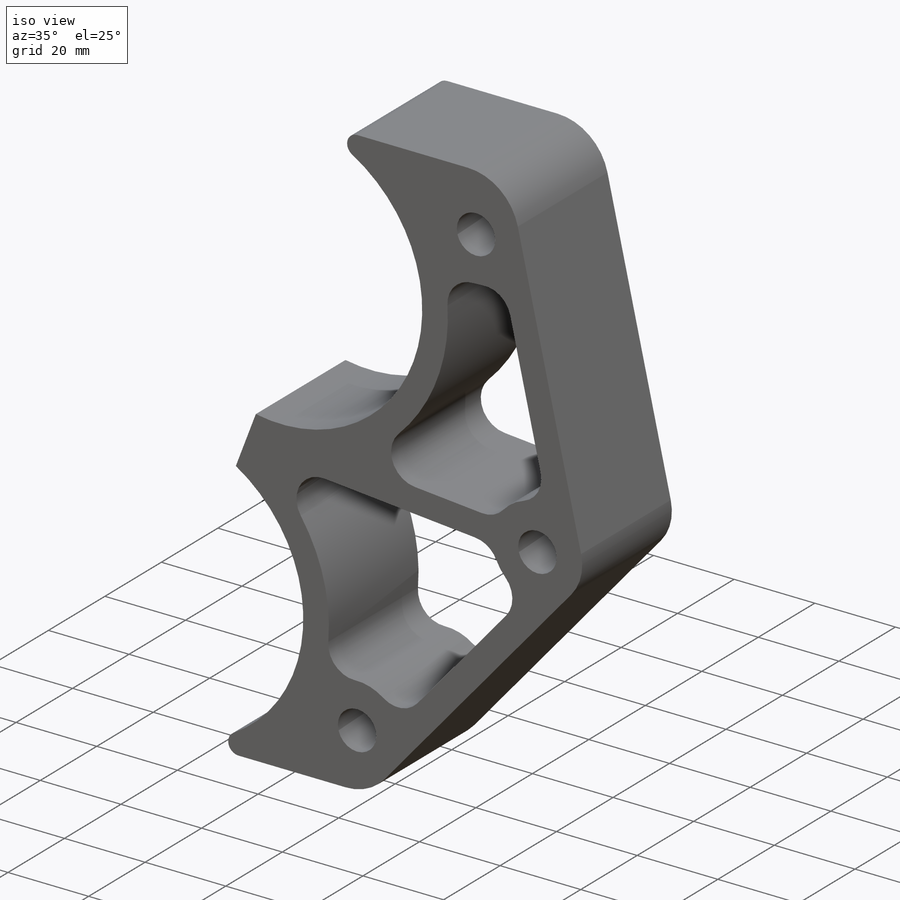
[diagram: iso view]
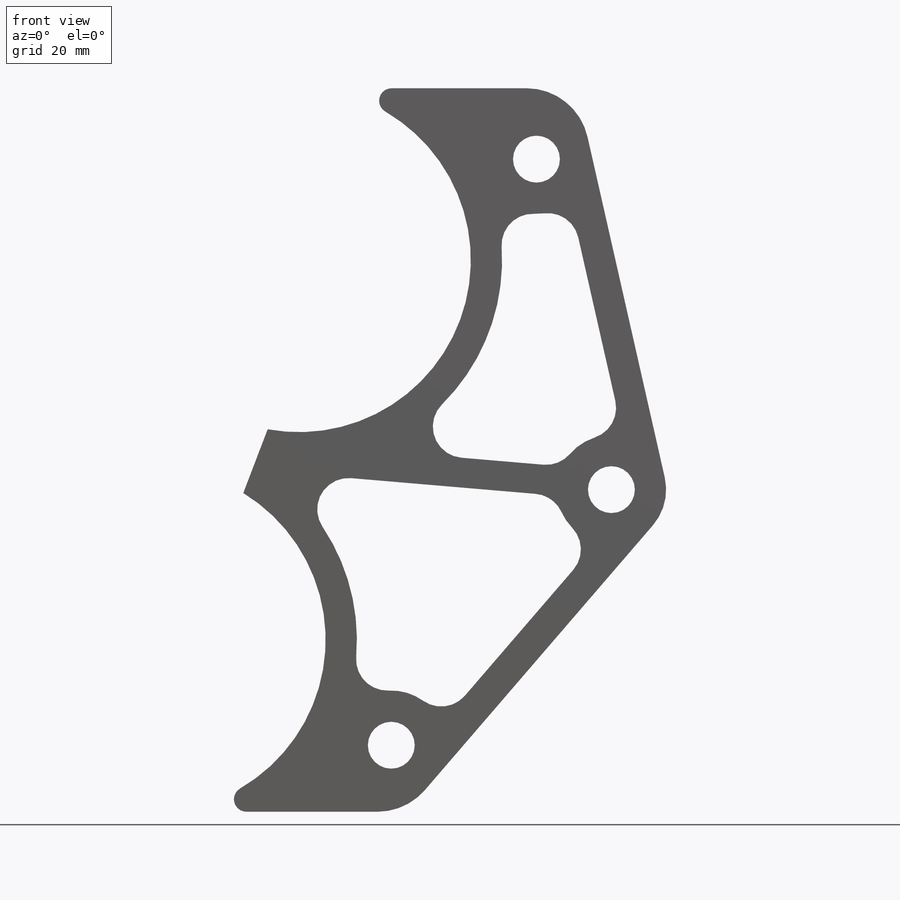
[diagram: front view]
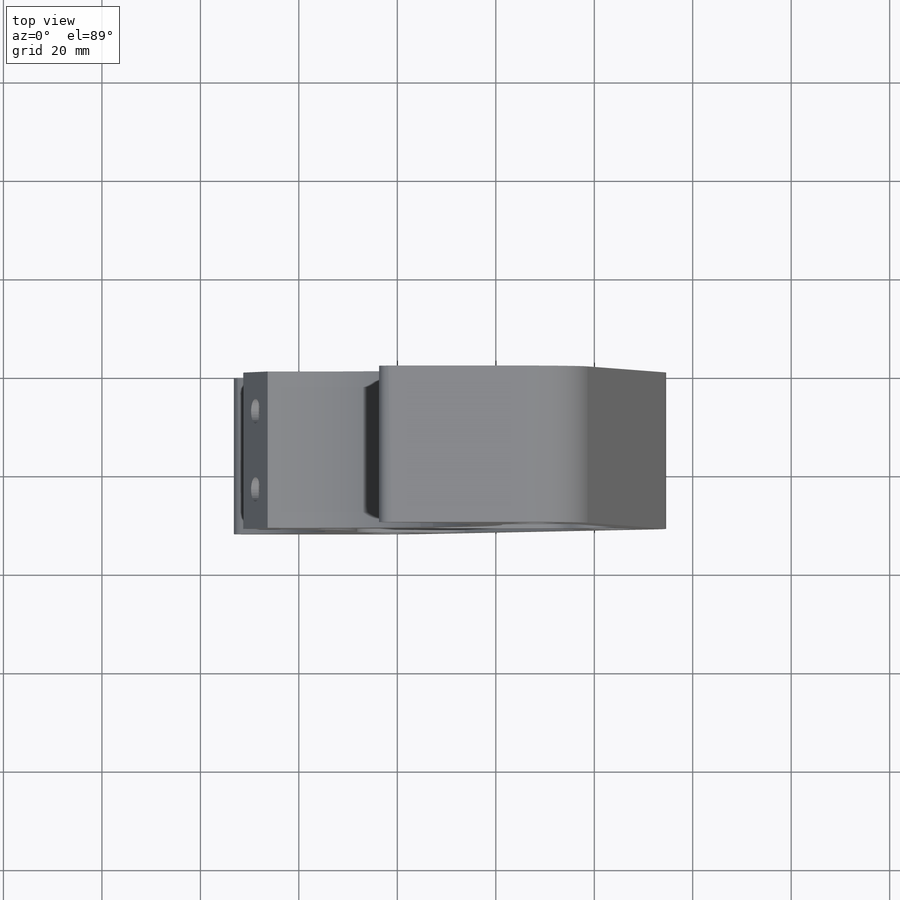
[diagram: top view]
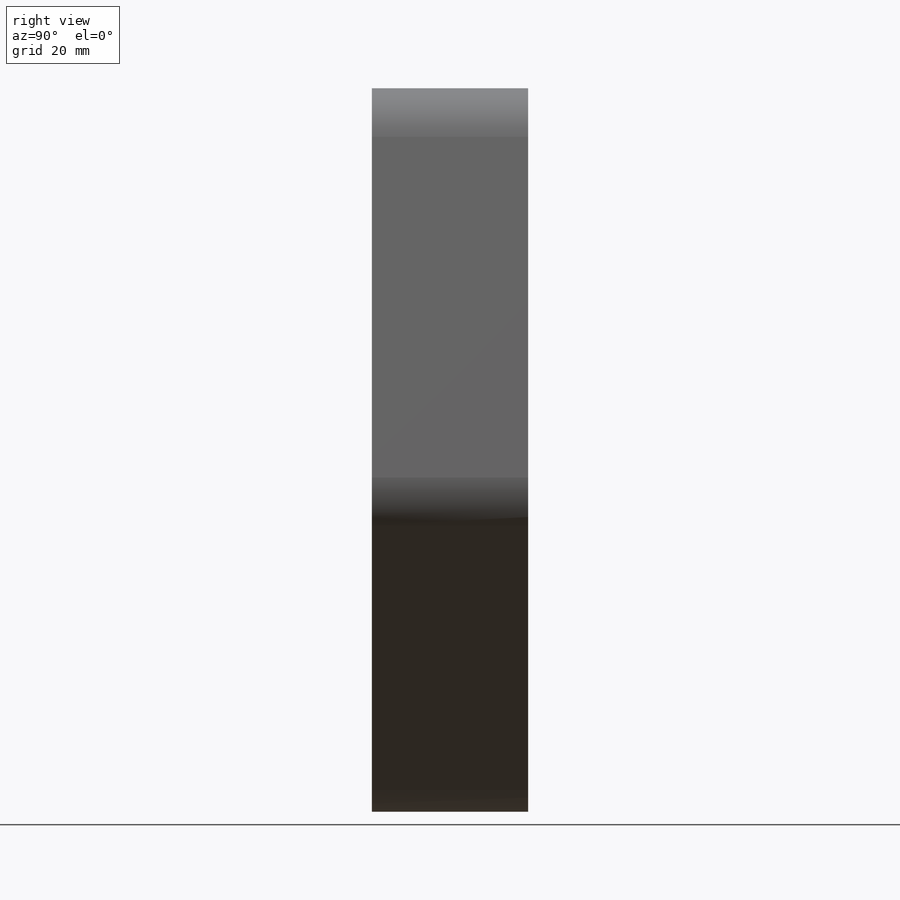
[diagram: right view]
SOLIDWORKS PART (.sldprt)
format: sldprt  version: not decoded by parser v0  size: 335,872 bytes
history: native  units: mm
features: sketch x3, cut_extrude x2, fillet x2, material x1, extrude x1 (+13 scaffold rows collapsed)
feature tree (22):
  scaffold x13  (default folders/planes/origin — collapsed)
  material  "6061-T6 (SS)"
  sketch  "Sketch1"  dims[c1.D1=69.85mm c1.D2=69.85mm c1.D7=6.35mm c1.D9=6.35mm c2.D7=22.225mm c2.D8=25.4mm c2.D12=22.225mm c2.D11=9.525mm c2.D13=9.525mm c2.D16=9.525mm c2.D17=22.225mm c2.D20=6.35mm c2.D18=6.35mm c2.D21=6.35mm c2.D22=6.35mm c2.D23=6.35mm c2.D24=6.35mm c2.D25=6.35mm c2.D3=82.55mm c2.D4=5.5372mm c2.D5=4.6482mm c2.D10=~24.115678mm c3.D10=~110.927961deg c3.D8=19.05mm c3.D9=48.26mm c3.D14=19.05mm c3.D15=48.26mm c3.D6=6.35mm c3.D7=3.175mm c4.D8=3.175mm c4.D11=6.35mm c4.D18=3.175mm c4.D19=6.35mm]
  extrude  "Boss-Extrude1"  Depth=31.75mm
  sketch  "Sketch2"  dims[D1=4.9784mm D2=4.9784mm D3=15.875mm D4=7.9375mm]
  cut_extrude  "Cut-Extrude1"  Depth=25.4mm
  sketch  "Sketch3"  dims[D1=6.35mm]
  cut_extrude  "Cut-Extrude2"  [1 undecoded]
  fillet  "Fillet1"  Radius=2.54mm
  fillet  "Fillet2"  Radius=12.7mm
decode coverage: 7 of 8 modeling features carry decoded parameters
note: ~ marks probable driven/reference dimensions
note: 1 parameter value undecoded
note: suppression state not decoded; provenance and decode notes live in map.json
